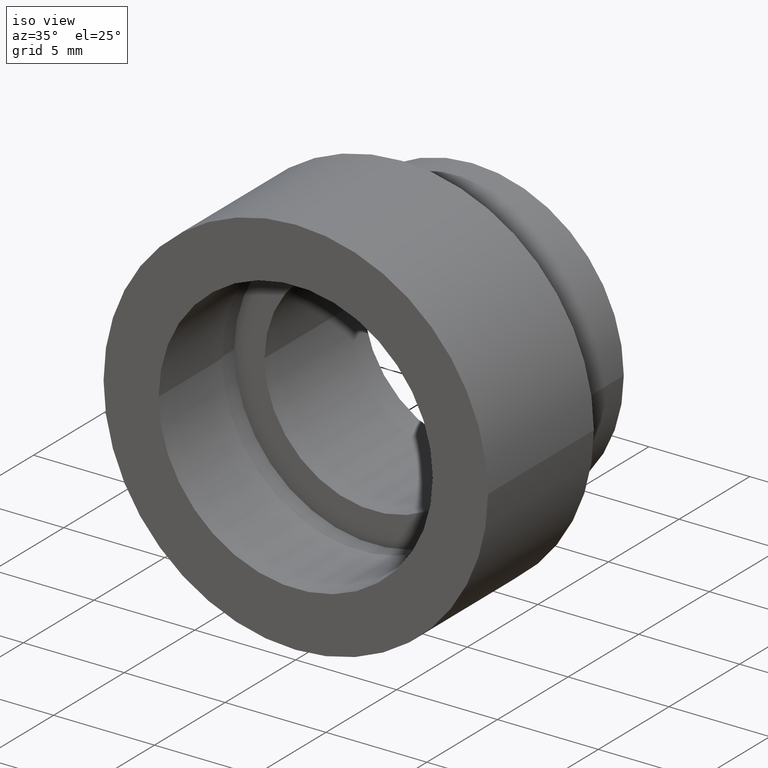
[diagram: clean part render]
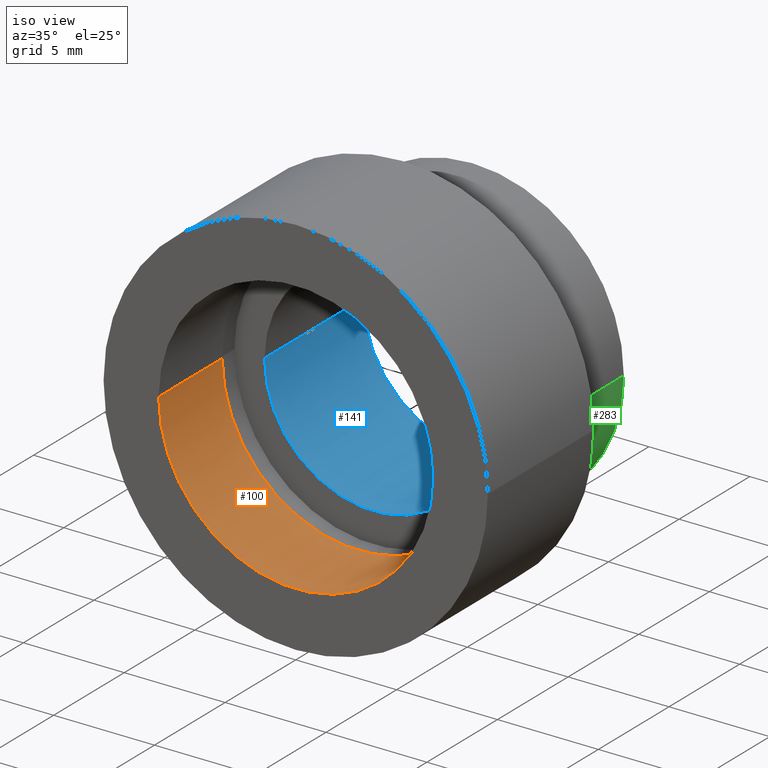
[diagram: same view with three faces highlighted in distinct colors, each labeled with its STEP entity id]
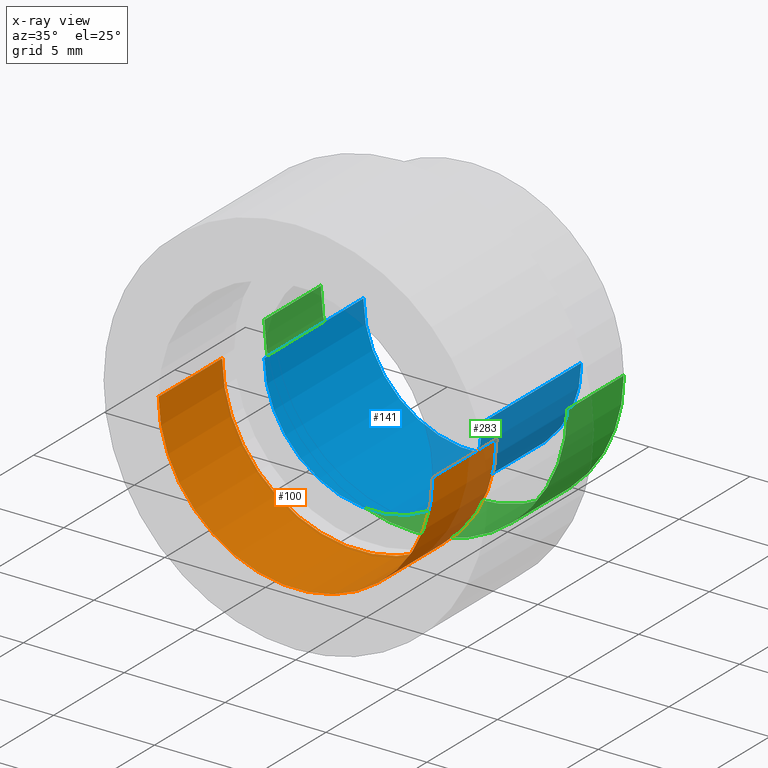
[diagram: x-ray of the same camera — body ghosted, the three highlighted faces saturated]
A machine part, iso view with three faces highlighted in distinct colors.
The next image is the same camera in x-ray (body ghosted, the three faces saturated) — at least one of them is partly hidden behind the body in this view.
Their STEP definitions:

[orange] entity #100 — the highlighted cylindrical surface (partial cylindrical patch) has radius 6.795 mm, axis along (-0, 1, -0).
#7 = DIRECTION ( 'NONE',  ( -1.000000000000000000, 0.0000000000000000000, 0.0000000000000000000 ) ) ;
#38 = CARTESIAN_POINT ( 'NONE',  ( 6.795000000000002600, 8.321475000206250400E-016, 8.321475000206265200E-016 ) ) ;
#43 = VERTEX_POINT ( 'NONE', #194 ) ;
#68 = CARTESIAN_POINT ( 'NONE',  ( 0.0000000000000000000, 16.88601823708207700, 0.0000000000000000000 ) ) ;
#97 = DIRECTION ( 'NONE',  ( -1.224646799147351000E-016, 1.000000000000000000, -0.0000000000000000000 ) ) ;
#100 = ADVANCED_FACE ( 'NONE', ( #427 ), #575, .F. ) ;
#103 = ORIENTED_EDGE ( 'NONE', *, *, #622, .T. ) ;
#174 = CIRCLE ( 'NONE', #576, 6.794999999999999900 ) ;
#194 = CARTESIAN_POINT ( 'NONE',  ( 6.795000000000000800, 4.499999999999998200, 8.321475000206263300E-016 ) ) ;
#199 = ORIENTED_EDGE ( 'NONE', *, *, #275, .F. ) ;
#215 = CARTESIAN_POINT ( 'NONE',  ( -6.794999999999998200, -8.321475000206249500E-016, 0.0000000000000000000 ) ) ;
#226 = CIRCLE ( 'NONE', #242, 6.794999999999999000 ) ;
#228 = CARTESIAN_POINT ( 'NONE',  ( 1.516849758822328300E-015, 4.499999999999997300, 0.0000000000000000000 ) ) ;
#240 = EDGE_LOOP ( 'NONE', ( #468, #103, #430, #199 ) ) ;
#242 = AXIS2_PLACEMENT_3D ( 'NONE', #228, #556, #550 ) ;
#255 = VECTOR ( 'NONE', #97, 1000.000000000000000 ) ;
#258 = AXIS2_PLACEMENT_3D ( 'NONE', #68, #435, #7 ) ;
#271 = VECTOR ( 'NONE', #396, 1000.000000000000000 ) ;
#274 = VERTEX_POINT ( 'NONE', #215 ) ;
#275 = EDGE_CURVE ( 'NONE', #274, #467, #566, .T. ) ;
#360 = CARTESIAN_POINT ( 'NONE',  ( -6.794999999999997300, 4.499999999999996400, 0.0000000000000000000 ) ) ;
#396 = DIRECTION ( 'NONE',  ( -1.224646799147351000E-016, 1.000000000000000000, -0.0000000000000000000 ) ) ;
#427 = FACE_OUTER_BOUND ( 'NONE', #240, .T. ) ;
#430 = ORIENTED_EDGE ( 'NONE', *, *, #442, .T. ) ;
#435 = DIRECTION ( 'NONE',  ( -1.224646799147351000E-016, 1.000000000000000000, -0.0000000000000000000 ) ) ;
#442 = EDGE_CURVE ( 'NONE', #43, #467, #226, .T. ) ;
#443 = LINE ( 'NONE', #469, #255 ) ;
#444 = CARTESIAN_POINT ( 'NONE',  ( -6.794999999999999000, 16.88601823708207700, 0.0000000000000000000 ) ) ;
#466 = DIRECTION ( 'NONE',  ( -1.000000000000000000, -1.224646799147351000E-016, 0.0000000000000000000 ) ) ;
#467 = VERTEX_POINT ( 'NONE', #360 ) ;
#468 = ORIENTED_EDGE ( 'NONE', *, *, #612, .F. ) ;
#469 = CARTESIAN_POINT ( 'NONE',  ( 6.794999999999999000, 16.88601823708207700, 8.321475000206263300E-016 ) ) ;
#514 = CARTESIAN_POINT ( 'NONE',  ( 2.067940818438636100E-015, 0.0000000000000000000, 0.0000000000000000000 ) ) ;
#527 = VERTEX_POINT ( 'NONE', #38 ) ;
#550 = DIRECTION ( 'NONE',  ( -1.000000000000000000, -1.276470548915973000E-016, 0.0000000000000000000 ) ) ;
#556 = DIRECTION ( 'NONE',  ( -1.224646799147351000E-016, 1.000000000000000000, -0.0000000000000000000 ) ) ;
#562 = DIRECTION ( 'NONE',  ( -1.224646799147351000E-016, 1.000000000000000000, -0.0000000000000000000 ) ) ;
#566 = LINE ( 'NONE', #444, #271 ) ;
#575 = CYLINDRICAL_SURFACE ( 'NONE', #258, 6.794999999999999000 ) ;
#576 = AXIS2_PLACEMENT_3D ( 'NONE', #514, #562, #466 ) ;
#612 = EDGE_CURVE ( 'NONE', #527, #274, #174, .T. ) ;
#622 = EDGE_CURVE ( 'NONE', #527, #43, #443, .T. ) ;

[blue] entity #141 — the highlighted cylindrical surface (partial cylindrical patch) has radius 5.4 mm, axis along (-0, 1, -0).
#14 = EDGE_LOOP ( 'NONE', ( #126, #553, #147, #605 ) ) ;
#17 = DIRECTION ( 'NONE',  ( -1.224646799147351000E-016, 1.000000000000000000, -0.0000000000000000000 ) ) ;
#20 = DIRECTION ( 'NONE',  ( -1.000000000000000000, 0.0000000000000000000, 0.0000000000000000000 ) ) ;
#22 = CARTESIAN_POINT ( 'NONE',  ( -5.399999999999998600, 5.499999999999997300, 0.0000000000000000000 ) ) ;
#27 = CARTESIAN_POINT ( 'NONE',  ( 5.400000000000002100, 5.499999999999999100, 6.613092715395707500E-016 ) ) ;
#80 = CIRCLE ( 'NONE', #327, 5.400000000000000400 ) ;
#99 = EDGE_CURVE ( 'NONE', #185, #102, #384, .T. ) ;
#102 = VERTEX_POINT ( 'NONE', #157 ) ;
#111 = CARTESIAN_POINT ( 'NONE',  ( 5.371323195044475300E-016, 12.49999999999999600, 0.0000000000000000000 ) ) ;
#120 = DIRECTION ( 'NONE',  ( -1.224646799147351000E-016, 1.000000000000000000, -0.0000000000000000000 ) ) ;
#126 = ORIENTED_EDGE ( 'NONE', *, *, #573, .F. ) ;
#130 = AXIS2_PLACEMENT_3D ( 'NONE', #326, #231, #269 ) ;
#136 = VECTOR ( 'NONE', #120, 1000.000000000000000 ) ;
#137 = AXIS2_PLACEMENT_3D ( 'NONE', #441, #17, #204 ) ;
#141 = ADVANCED_FACE ( 'NONE', ( #161 ), #536, .F. ) ;
#147 = ORIENTED_EDGE ( 'NONE', *, *, #151, .T. ) ;
#151 = EDGE_CURVE ( 'NONE', #489, #102, #80, .T. ) ;
#157 = CARTESIAN_POINT ( 'NONE',  ( -5.399999999999999500, 12.49999999999999600, 0.0000000000000000000 ) ) ;
#161 = FACE_OUTER_BOUND ( 'NONE', #14, .T. ) ;
#168 = CARTESIAN_POINT ( 'NONE',  ( 5.400000000000001200, 12.49999999999999600, 6.613092715395707500E-016 ) ) ;
#185 = VERTEX_POINT ( 'NONE', #22 ) ;
#201 = DIRECTION ( 'NONE',  ( -1.224646799147351000E-016, 1.000000000000000000, -0.0000000000000000000 ) ) ;
#204 = DIRECTION ( 'NONE',  ( -1.000000000000000000, 0.0000000000000000000, 0.0000000000000000000 ) ) ;
#227 = VECTOR ( 'NONE', #484, 1000.000000000000000 ) ;
#231 = DIRECTION ( 'NONE',  ( -1.224646799147351000E-016, 1.000000000000000000, -0.0000000000000000000 ) ) ;
#269 = DIRECTION ( 'NONE',  ( -1.000000000000000000, -1.606225440719265600E-016, 0.0000000000000000000 ) ) ;
#289 = VERTEX_POINT ( 'NONE', #27 ) ;
#326 = CARTESIAN_POINT ( 'NONE',  ( 1.394385078907593000E-015, 5.499999999999998200, 0.0000000000000000000 ) ) ;
#327 = AXIS2_PLACEMENT_3D ( 'NONE', #111, #201, #20 ) ;
#328 = CIRCLE ( 'NONE', #130, 5.400000000000000400 ) ;
#384 = LINE ( 'NONE', #439, #227 ) ;
#406 = EDGE_CURVE ( 'NONE', #289, #489, #472, .T. ) ;
#439 = CARTESIAN_POINT ( 'NONE',  ( -5.400000000000000400, 16.88601823708207700, 0.0000000000000000000 ) ) ;
#441 = CARTESIAN_POINT ( 'NONE',  ( 0.0000000000000000000, 16.88601823708207700, 0.0000000000000000000 ) ) ;
#472 = LINE ( 'NONE', #548, #136 ) ;
#484 = DIRECTION ( 'NONE',  ( -1.224646799147351000E-016, 1.000000000000000000, -0.0000000000000000000 ) ) ;
#489 = VERTEX_POINT ( 'NONE', #168 ) ;
#536 = CYLINDRICAL_SURFACE ( 'NONE', #137, 5.400000000000000400 ) ;
#548 = CARTESIAN_POINT ( 'NONE',  ( 5.400000000000000400, 16.88601823708207700, 6.613092715395707500E-016 ) ) ;
#553 = ORIENTED_EDGE ( 'NONE', *, *, #406, .T. ) ;
#573 = EDGE_CURVE ( 'NONE', #289, #185, #328, .T. ) ;
#605 = ORIENTED_EDGE ( 'NONE', *, *, #99, .F. ) ;

[green] entity #283 — the highlighted cylindrical surface (partial cylindrical patch) has radius 7.51 mm, axis along (-0, 1, -0).
#30 = CIRCLE ( 'NONE', #371, 7.509999999999999800 ) ;
#41 = DIRECTION ( 'NONE',  ( -1.224646799147351000E-016, 1.000000000000000000, -0.0000000000000000000 ) ) ;
#42 = FACE_OUTER_BOUND ( 'NONE', #81, .T. ) ;
#81 = EDGE_LOOP ( 'NONE', ( #213, #323, #200, #423 ) ) ;
#91 = EDGE_CURVE ( 'NONE', #369, #306, #131, .T. ) ;
#113 = CARTESIAN_POINT ( 'NONE',  ( 1.026991039163387700E-015, 8.499999999999998200, 0.0000000000000000000 ) ) ;
#124 = CYLINDRICAL_SURFACE ( 'NONE', #379, 7.509999999999999800 ) ;
#128 = EDGE_CURVE ( 'NONE', #578, #236, #337, .T. ) ;
#131 = LINE ( 'NONE', #485, #488 ) ;
#200 = ORIENTED_EDGE ( 'NONE', *, *, #128, .T. ) ;
#207 = EDGE_CURVE ( 'NONE', #369, #578, #437, .T. ) ;
#209 = DIRECTION ( 'NONE',  ( -1.000000000000000000, -2.309884788251407900E-016, 0.0000000000000000000 ) ) ;
#213 = ORIENTED_EDGE ( 'NONE', *, *, #91, .F. ) ;
#236 = VERTEX_POINT ( 'NONE', #300 ) ;
#253 = DIRECTION ( 'NONE',  ( -1.000000000000000000, 0.0000000000000000000, 0.0000000000000000000 ) ) ;
#283 = ADVANCED_FACE ( 'NONE', ( #42 ), #124, .T. ) ;
#300 = CARTESIAN_POINT ( 'NONE',  ( -7.509999999999998900, 12.49999999999999500, 0.0000000000000000000 ) ) ;
#306 = VERTEX_POINT ( 'NONE', #491 ) ;
#319 = CARTESIAN_POINT ( 'NONE',  ( 5.371323195044473300E-016, 12.49999999999999600, 0.0000000000000000000 ) ) ;
#323 = ORIENTED_EDGE ( 'NONE', *, *, #207, .T. ) ;
#325 = CARTESIAN_POINT ( 'NONE',  ( -7.509999999999998900, 8.499999999999996400, 0.0000000000000000000 ) ) ;
#337 = LINE ( 'NONE', #480, #586 ) ;
#357 = CARTESIAN_POINT ( 'NONE',  ( 7.510000000000000700, 8.500000000000000000, 9.197097461596621700E-016 ) ) ;
#369 = VERTEX_POINT ( 'NONE', #357 ) ;
#371 = AXIS2_PLACEMENT_3D ( 'NONE', #319, #41, #504 ) ;
#379 = AXIS2_PLACEMENT_3D ( 'NONE', #598, #402, #253 ) ;
#388 = DIRECTION ( 'NONE',  ( -1.224646799147351000E-016, 1.000000000000000000, -0.0000000000000000000 ) ) ;
#402 = DIRECTION ( 'NONE',  ( -1.224646799147351000E-016, 1.000000000000000000, -0.0000000000000000000 ) ) ;
#423 = ORIENTED_EDGE ( 'NONE', *, *, #492, .F. ) ;
#437 = CIRCLE ( 'NONE', #449, 7.509999999999999800 ) ;
#449 = AXIS2_PLACEMENT_3D ( 'NONE', #113, #486, #209 ) ;
#480 = CARTESIAN_POINT ( 'NONE',  ( -7.509999999999999800, 16.88601823708207700, 0.0000000000000000000 ) ) ;
#485 = CARTESIAN_POINT ( 'NONE',  ( 7.509999999999999800, 16.88601823708207700, 9.197097461596621700E-016 ) ) ;
#486 = DIRECTION ( 'NONE',  ( -1.224646799147351000E-016, 1.000000000000000000, -0.0000000000000000000 ) ) ;
#488 = VECTOR ( 'NONE', #535, 1000.000000000000000 ) ;
#491 = CARTESIAN_POINT ( 'NONE',  ( 7.510000000000000700, 12.49999999999999800, 9.197097461596621700E-016 ) ) ;
#492 = EDGE_CURVE ( 'NONE', #306, #236, #30, .T. ) ;
#504 = DIRECTION ( 'NONE',  ( -1.000000000000000000, -2.309884788251407900E-016, 0.0000000000000000000 ) ) ;
#535 = DIRECTION ( 'NONE',  ( -1.224646799147351000E-016, 1.000000000000000000, -0.0000000000000000000 ) ) ;
#578 = VERTEX_POINT ( 'NONE', #325 ) ;
#586 = VECTOR ( 'NONE', #388, 1000.000000000000000 ) ;
#598 = CARTESIAN_POINT ( 'NONE',  ( 0.0000000000000000000, 16.88601823708207700, 0.0000000000000000000 ) ) ;